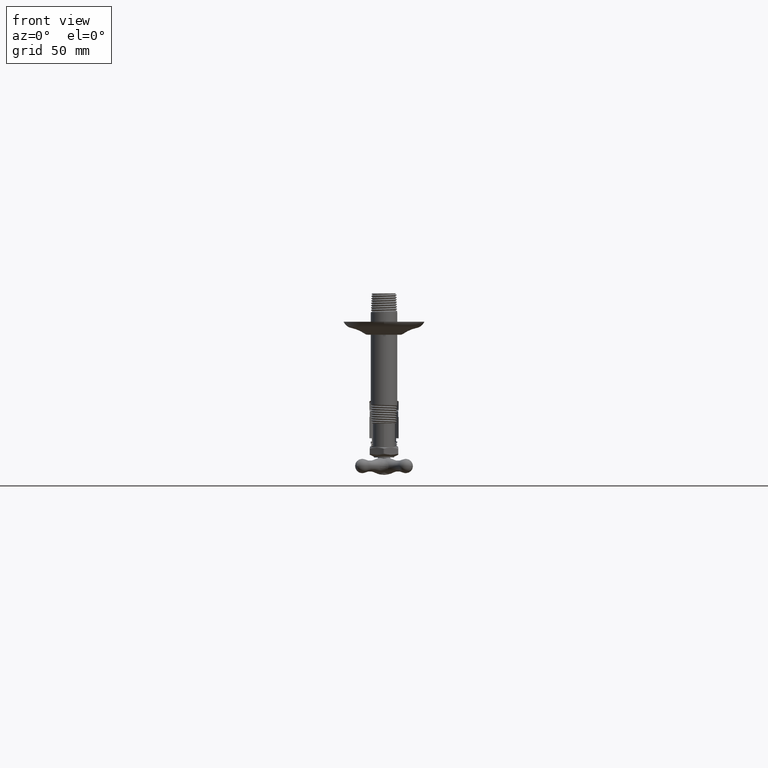
[diagram: clean part render]
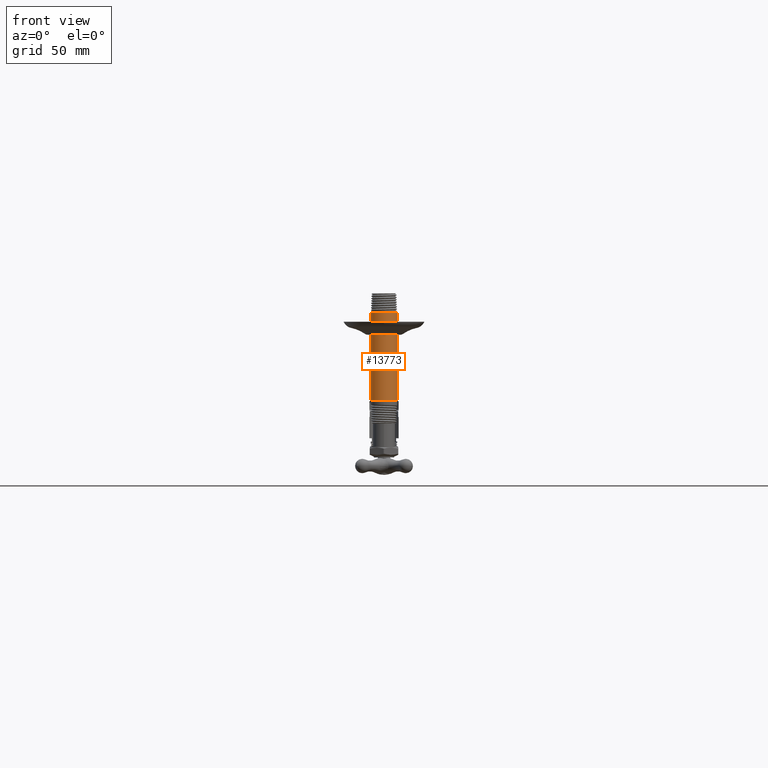
[diagram: same view with one face highlighted and labeled with its STEP entity id]
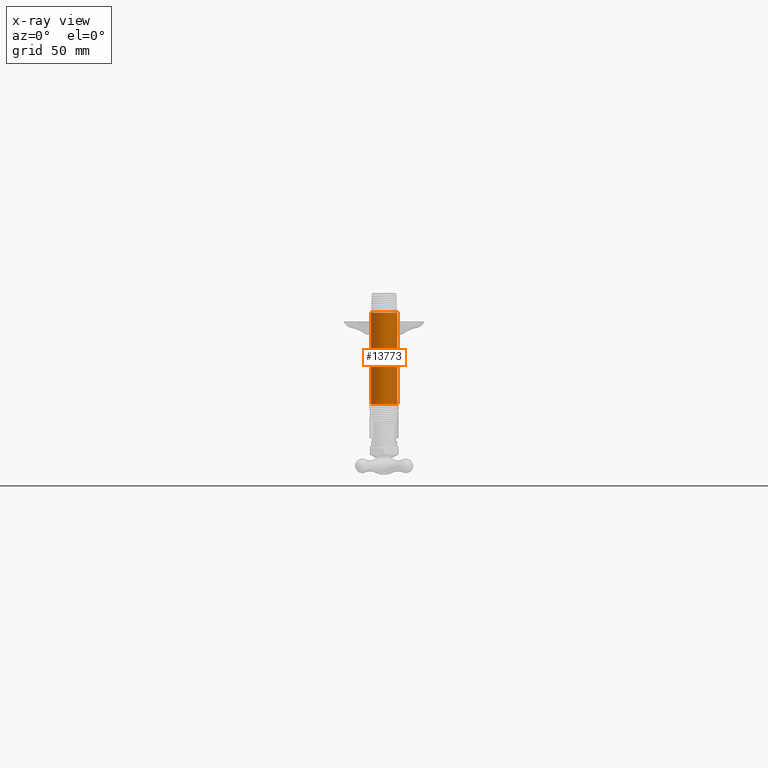
[diagram: x-ray of the same camera — body ghosted, the highlighted face saturated]
A machine part, front view. The second image highlights one B-rep face of the part: STEP entity #13773.
The next image is the same camera in x-ray: the body ghosted, the highlighted face saturated — about 0% of this face is hidden behind the body in this view.
In plain terms, the highlighted cylindrical surface (edge-blend (fillet) strip) has radius 10.2997 mm, axis along (0, 0, 1).
Its self-contained STEP definition (entity closure, byte-faithful):
#2395=CARTESIAN_POINT('',(0.E0,0.E0,7.25E-1));
#2396=DIRECTION('',(0.E0,0.E0,1.E0));
#2397=DIRECTION('',(-1.E0,-2.063790179004E-13,0.E0));
#2398=AXIS2_PLACEMENT_3D('',#2395,#2396,#2397);
#2779=CARTESIAN_POINT('',(0.E0,0.E0,7.25E-1));
#2780=DIRECTION('',(0.E0,0.E0,1.E0));
#2781=DIRECTION('',(3.097905714555E-13,-1.E0,0.E0));
#2782=AXIS2_PLACEMENT_3D('',#2779,#2780,#2781);
#2864=DIRECTION('',(0.E0,0.E0,1.E0));
#2865=VECTOR('',#2864,2.799999999999E0);
#2866=CARTESIAN_POINT('',(-4.055E-1,-6.976892282793E-14,7.25E-1));
#2867=LINE('',#2866,#2865);
#2868=DIRECTION('',(0.E0,0.E0,-1.E0));
#2869=VECTOR('',#2868,2.8E0);
#2870=CARTESIAN_POINT('',(4.055E-1,-1.401090127400E-14,3.525E0));
#2871=LINE('',#2870,#2869);
#3155=CARTESIAN_POINT('',(0.E0,0.E0,3.525E0));
#3156=DIRECTION('',(0.E0,0.E0,-1.E0));
#3157=DIRECTION('',(1.E0,0.E0,0.E0));
#3158=AXIS2_PLACEMENT_3D('',#3155,#3156,#3157);
#3461=CARTESIAN_POINT('',(0.E0,0.E0,3.524999999998E0));
#3462=DIRECTION('',(0.E0,0.E0,-1.E0));
#3463=DIRECTION('',(3.097905714555E-13,-1.E0,0.E0));
#3464=AXIS2_PLACEMENT_3D('',#3461,#3462,#3463);
#9065=CARTESIAN_POINT('',(4.193338496660E-14,-4.055E-1,3.524999999999E0));
#9066=VERTEX_POINT('',#9065);
#9067=CARTESIAN_POINT('',(-4.055E-1,-8.368669175861E-14,3.524999999998E0));
#9068=VERTEX_POINT('',#9067);
#9101=CARTESIAN_POINT('',(4.055E-1,0.E0,3.525E0));
#9102=VERTEX_POINT('',#9101);
#9111=CARTESIAN_POINT('',(-4.055E-1,-8.368669175860E-14,7.25E-1));
#9113=VERTEX_POINT('',#9111);
#9114=CARTESIAN_POINT('',(4.055E-1,0.E0,7.25E-1));
#9115=VERTEX_POINT('',#9114);
#9117=CARTESIAN_POINT('',(1.256200767252E-13,-4.055E-1,7.25E-1));
#9118=VERTEX_POINT('',#9117);
#13756=CARTESIAN_POINT('',(0.E0,0.E0,6.69E-1));
#13757=DIRECTION('',(0.E0,0.E0,1.E0));
#13758=DIRECTION('',(1.E0,0.E0,0.E0));
#13759=AXIS2_PLACEMENT_3D('',#13756,#13757,#13758);
#13760=CYLINDRICAL_SURFACE('',#13759,4.055E-1);
#13761=ORIENTED_EDGE('',*,*,#12844,.F.);
#13763=ORIENTED_EDGE('',*,*,#13762,.T.);
#13765=ORIENTED_EDGE('',*,*,#13764,.F.);
#13767=ORIENTED_EDGE('',*,*,#13766,.F.);
#13769=ORIENTED_EDGE('',*,*,#13768,.T.);
#13770=ORIENTED_EDGE('',*,*,#13425,.F.);
#13771=EDGE_LOOP('',(#13761,#13763,#13765,#13767,#13769,#13770));
#13772=FACE_OUTER_BOUND('',#13771,.F.);
#13773=ADVANCED_FACE('',(#13772),#13760,.T.);
#2399=CIRCLE('',#2398,4.055E-1);
#2783=CIRCLE('',#2782,4.055E-1);
#3159=CIRCLE('',#3158,4.055E-1);
#3465=CIRCLE('',#3464,4.055E-1);
#12844=EDGE_CURVE('',#9113,#9118,#2399,.T.);
#13425=EDGE_CURVE('',#9118,#9115,#2783,.T.);
#13762=EDGE_CURVE('',#9113,#9068,#2867,.T.);
#13764=EDGE_CURVE('',#9066,#9068,#3465,.T.);
#13766=EDGE_CURVE('',#9102,#9066,#3159,.T.);
#13768=EDGE_CURVE('',#9102,#9115,#2871,.T.);